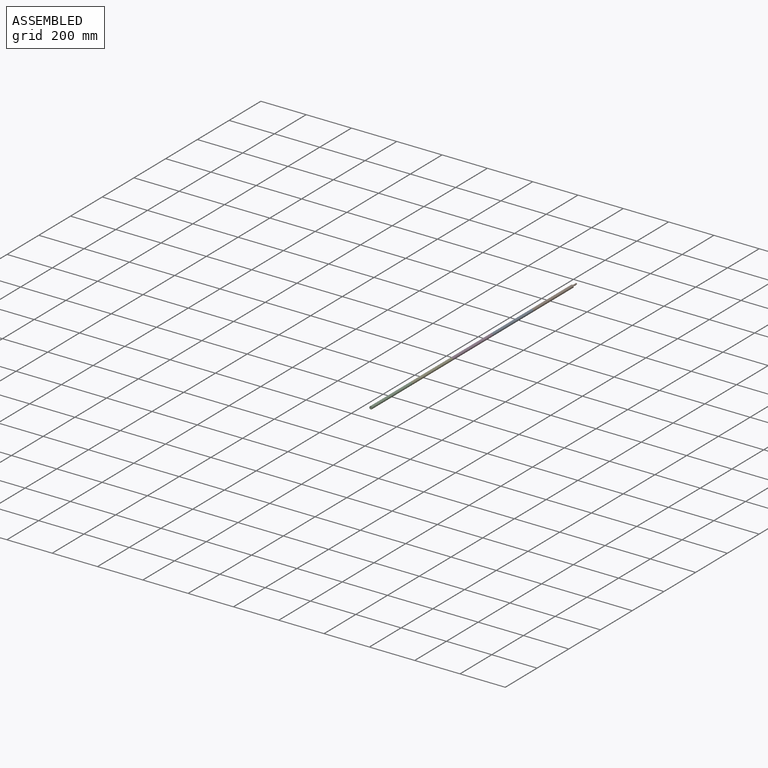
[diagram: assembled view]
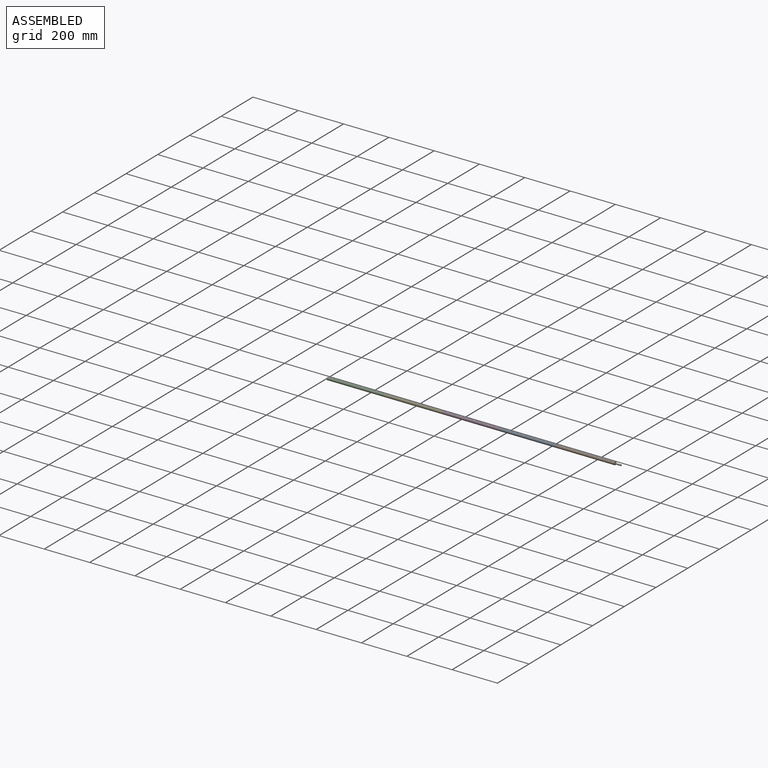
[diagram: assembled view, second angle]
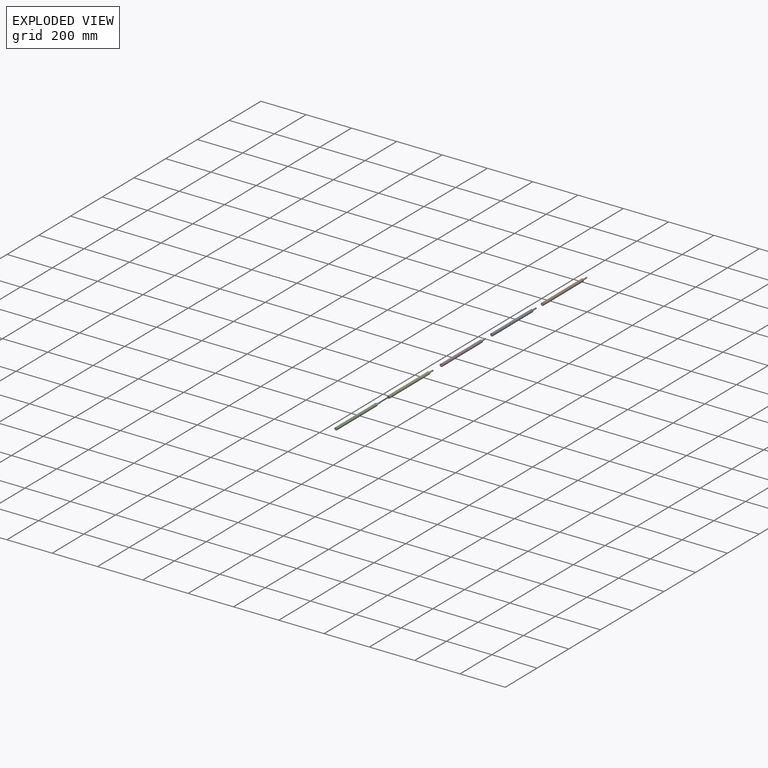
[diagram: exploded view]
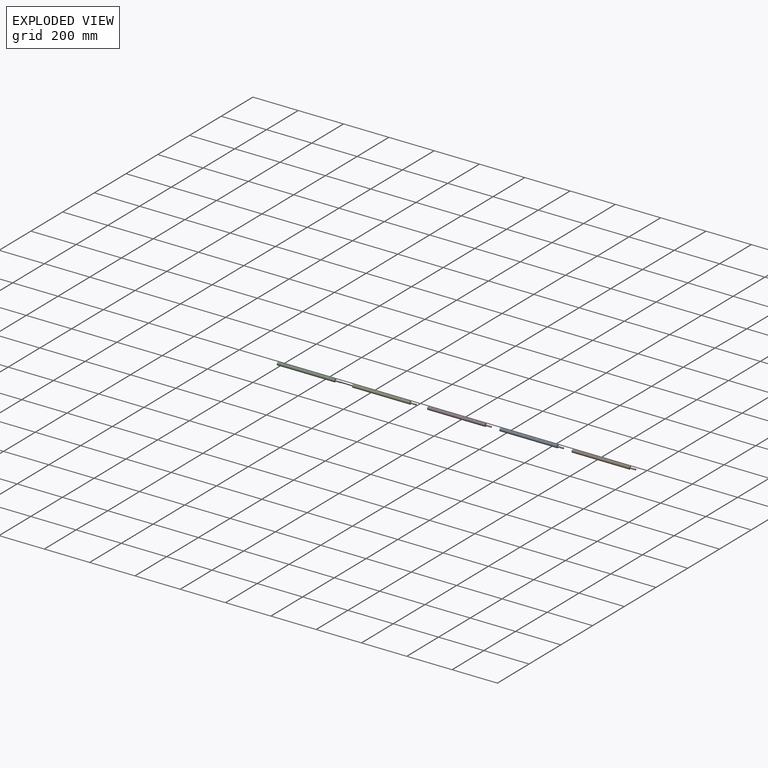
[diagram: exploded view, second angle]
ASSEMBLY  parts=5 mates=5
PART A: 7 faces, bbox 12.7x279.4x12.7 mm
  f0: cylinder r=6.35mm len=254mm, axis (0,1,0), area 10134.1mm2, adj f1,f5
  f1: plane 12.7x12.7mm, normal (0,-1,0), area 95mm2, adj f0,f2
  f2: cylinder r=3.17mm len=25.4mm, axis (0,-1,0), area 506.7mm2, adj f1,f3
  f3: plane 6.35x6.35mm, normal (0,-1,0), area 31.7mm2, adj f2
  f4: cylinder r=3.17mm len=25.4mm, axis (0,1,0), area 506.7mm2, adj f5,f6
  f5: plane 12.7x12.7mm, normal (0,1,0), area 95mm2, adj f0,f4
  f6: plane 6.35x6.35mm, normal (0,1,0), area 31.7mm2, adj f4
PART B: same geometry as A
PART C: same geometry as A
PART D: same geometry as A
PART E: same geometry as A
PLACE A t=(-137.83,475.38,56.08)mm
PLACE B t=(-137.83,729.38,56.08)mm
PLACE C t=(-137.83,-286.62,56.08)mm
PLACE D t=(-137.83,221.38,56.08)mm
PLACE E t=(-137.83,-32.62,56.08)mm
MATE fastened C.f0 <-> E.f0  axis (0,1,0) through (-137.83,-312.02,56.08)mm
MATE fastened B.f0 <-> A.f0  axis (0,-1,0) through (-137.83,449.98,56.08)mm
MATE fastened D.f0 <-> E.f0  axis (0,1,0) through (-137.83,-58.02,56.08)mm
MATE fastened D.f0 <-> A.f0  axis (0,1,0) through (-137.83,195.98,56.08)mm
MATE fastened A.f0 <-> D.f0  axis (0,-1,0) through (-137.83,195.98,56.08)mm
